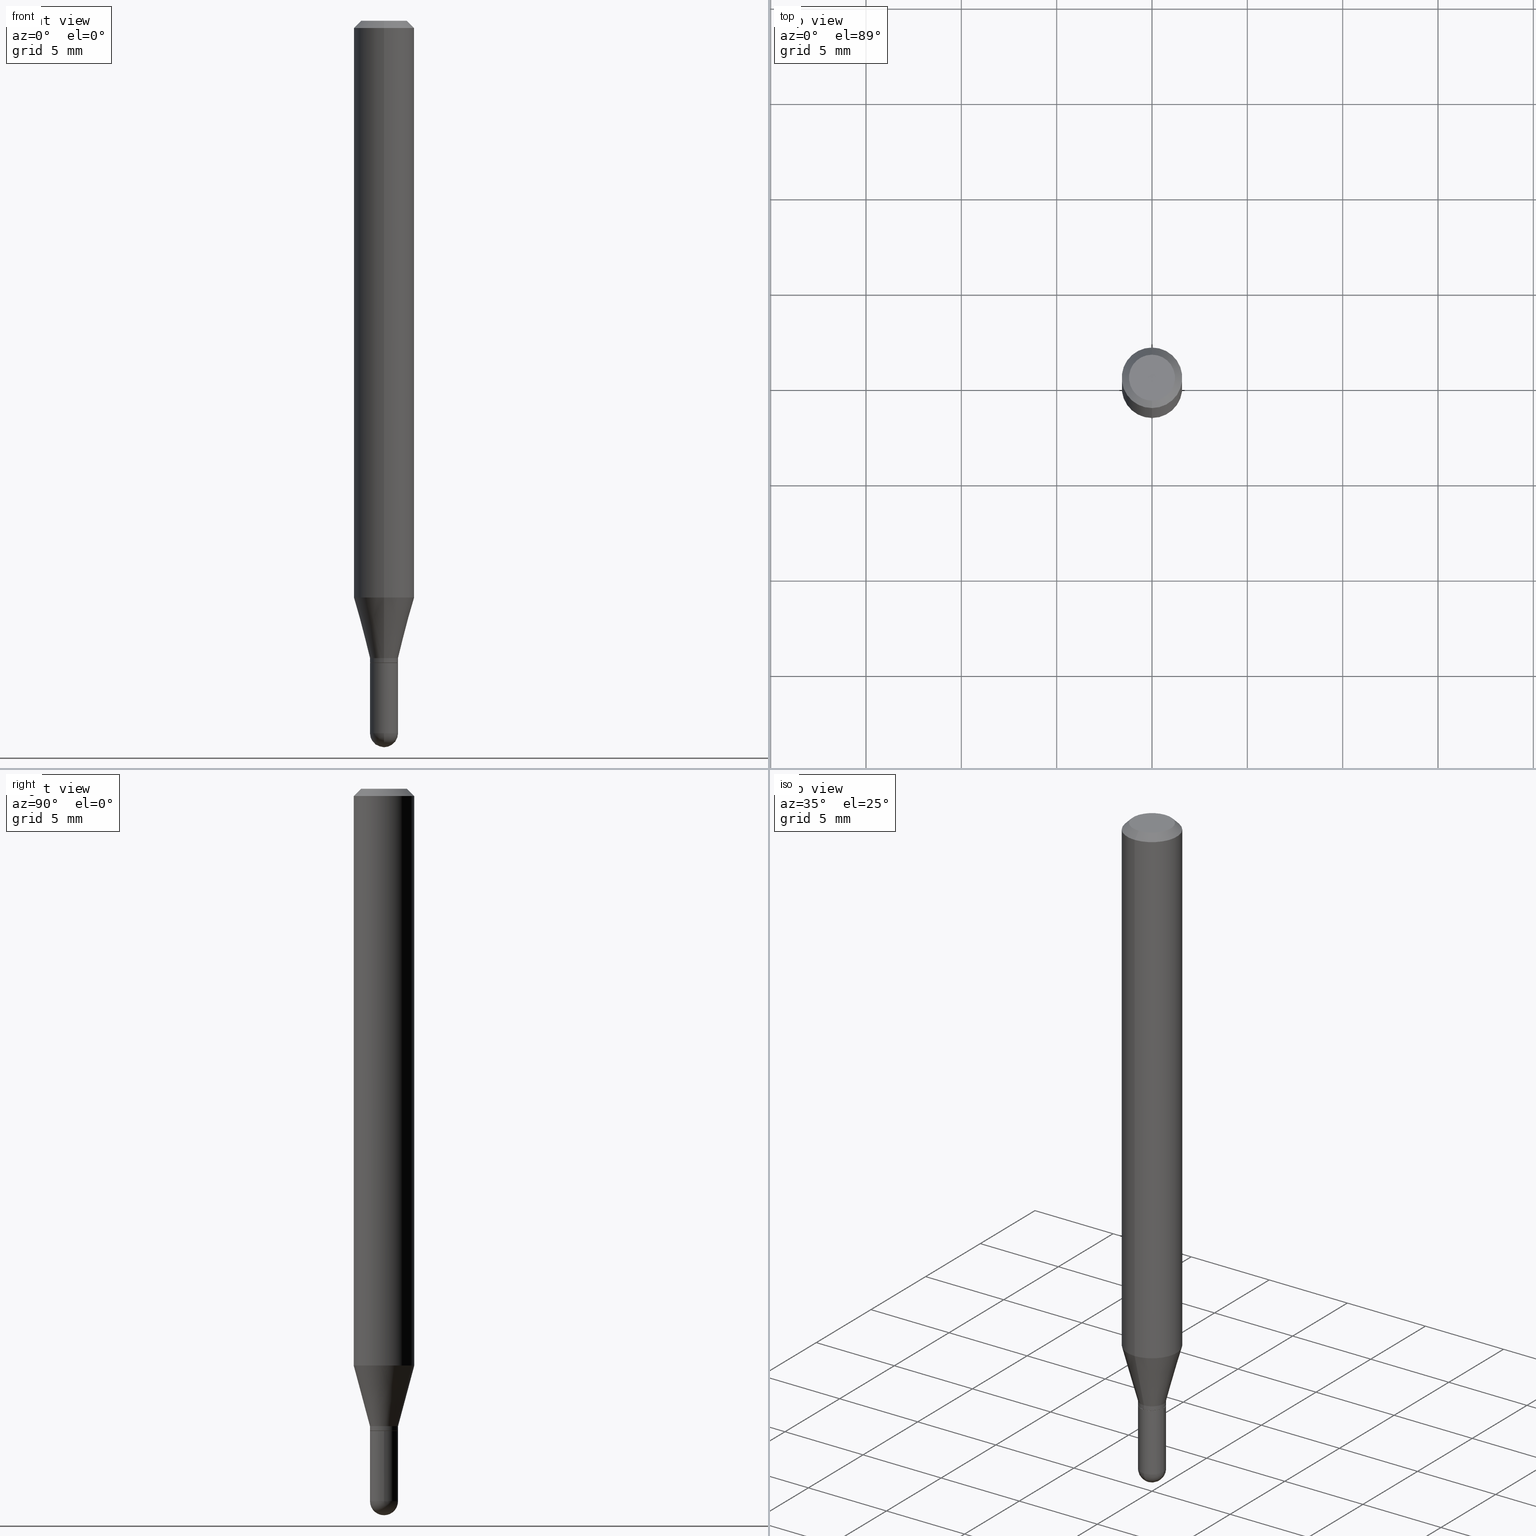
[diagram: canonical four-view strip — front | top / right | iso, engineering-drawing reading convention]
A machine part, canonical four-view strip (front | top / right | iso — engineering-drawing reading convention). The complete STEP part file that produces these views, byte-faithful:
ISO-10303-21;
HEADER;
FILE_DESCRIPTION (( 'STEP AP203' ),
    '1' );
FILE_NAME ('02589.STEP',
    '2024-03-07T20:37:03',
    ( '' ),
    ( '' ),
    'SwSTEP 2.0',
    'SolidWorks 2023',
    '' );
FILE_SCHEMA (( 'CONFIG_CONTROL_DESIGN' ));
ENDSEC;

DATA;
#1 = CONICAL_SURFACE ( 'NONE', #299, 0.02850000000000000103, 0.7853981633974739252 ) ;
#2 = ORIENTED_EDGE ( 'NONE', *, *, #492, .F. ) ;
#3 = VECTOR ( 'NONE', #476, 39.37007874015748143 ) ;
#4 = EDGE_LOOP ( 'NONE', ( #121, #478, #127, #12 ) ) ;
#5 = APPROVAL_ROLE ( '' ) ;
#6 = CARTESIAN_POINT ( 'NONE',  ( 2.025046796916609529E-16, 0.02849999999999536932, -1.326000000000000290 ) ) ;
#7 = APPROVAL ( #80, 'UNSPECIFIED' ) ;
#8 = ORIENTED_EDGE ( 'NONE', *, *, #418, .F. ) ;
#9 = CIRCLE ( 'NONE', #432, 0.02900000000000000147 ) ;
#10 = CIRCLE ( 'NONE', #151, 0.02899999999999992514 ) ;
#11 = DATE_AND_TIME ( #239, #349 ) ;
#12 = ORIENTED_EDGE ( 'NONE', *, *, #438, .F. ) ;
#13 = CARTESIAN_POINT ( 'NONE',  ( 3.597284613898336423E-29, -5.135969049438267814E-15, -1.471000000000000307 ) ) ;
#14 = EDGE_CURVE ( 'NONE', #484, #92, #475, .T. ) ;
#15 = VERTEX_POINT ( 'NONE', #218 ) ;
#16 = ORIENTED_EDGE ( 'NONE', *, *, #259, .F. ) ;
#17 = DIRECTION ( 'NONE',  ( 1.000000000000000000, -6.982962677686265922E-15, 0.000000000000000000 ) ) ;
#18 = EDGE_CURVE ( 'NONE', #136, #354, #215, .T. ) ;
#19 = FACE_OUTER_BOUND ( 'NONE', #174, .T. ) ;
#20 = DIRECTION ( 'NONE',  ( -6.982962677686265922E-15, -1.000000000000000000, 0.000000000000000000 ) ) ;
#21 = AXIS2_PLACEMENT_3D ( 'NONE', #104, #314, #502 ) ;
#22 = ADVANCED_FACE ( 'NONE', ( #175 ), #448, .F. ) ;
#23 = DIRECTION ( 'NONE',  ( -6.982962677686265922E-15, -1.000000000000000000, 0.000000000000000000 ) ) ;
#24 = CALENDAR_DATE ( 2024, 7, 3 ) ;
#25 = CC_DESIGN_PERSON_AND_ORGANIZATION_ASSIGNMENT ( #440, #161, ( #47 ) ) ;
#26 = CARTESIAN_POINT ( 'NONE',  ( -2.025059176528689732E-16, -0.02900000000000451175, -1.316000000000000281 ) ) ;
#27 = CARTESIAN_POINT ( 'NONE',  ( 3.597284613898336423E-29, -5.135969049438267814E-15, -1.471000000000000307 ) ) ;
#28 = CARTESIAN_POINT ( 'NONE',  ( 2.912491073195806680E-29, -4.158277694798067993E-15, -1.190976297946443330 ) ) ;
#29 = CARTESIAN_POINT ( 'NONE',  ( 0.000000000000000000, 0.000000000000000000, 0.000000000000000000 ) ) ;
#30 = VECTOR ( 'NONE', #233, 39.37007874015748143 ) ;
#31 = AXIS2_PLACEMENT_3D ( 'NONE', #271, #422, #69 ) ;
#32 = DIRECTION ( 'NONE',  ( 1.000000000000000000, -6.982962677686265922E-15, 0.000000000000000000 ) ) ;
#33 = DIRECTION ( 'NONE',  ( 1.000000000000000000, -6.982962677686265922E-15, 0.000000000000000000 ) ) ;
#34 = EDGE_CURVE ( 'NONE', #334, #457, #9, .T. ) ;
#35 = CARTESIAN_POINT ( 'NONE',  ( 3.242691637001491818E-29, -4.629704255306012058E-15, -1.326000000000000290 ) ) ;
#36 = CARTESIAN_POINT ( 'NONE',  ( -4.287811248607203282E-16, -0.06250000000000005551, -0.01500000000000011047 ) ) ;
#37 = DIRECTION ( 'NONE',  ( -6.982962677686265922E-15, -1.000000000000000000, 0.000000000000000000 ) ) ;
#38 = PERSON_AND_ORGANIZATION ( #459, #244 ) ;
#39 = AXIS2_PLACEMENT_3D ( 'NONE', #428, #78, #229 ) ;
#40 = CARTESIAN_POINT ( 'NONE',  ( 3.250733016102762484E-16, 0.02899999999999532813, -1.316000000000000281 ) ) ;
#41 = ORIENTED_EDGE ( 'NONE', *, *, #221, .F. ) ;
#42 = DIRECTION ( 'NONE',  ( 1.000000000000000000, 0.000000000000000000, 0.000000000000000000 ) ) ;
#43 = EDGE_LOOP ( 'NONE', ( #352, #436, #164, #301 ) ) ;
#44 = PERSON_AND_ORGANIZATION_ROLE ( 'creator' ) ;
#45 = LINE ( 'NONE', #6, #172 ) ;
#46 = VECTOR ( 'NONE', #307, 39.37007874015748143 ) ;
#47 = PRODUCT_DEFINITION_FORMATION_WITH_SPECIFIED_SOURCE ( 'ANY', '', #326, .NOT_KNOWN. ) ;
#48 = ORIENTED_EDGE ( 'NONE', *, *, #454, .F. ) ;
#49 = ORIENTED_EDGE ( 'NONE', *, *, #259, .T. ) ;
#50 = ORIENTED_EDGE ( 'NONE', *, *, #173, .T. ) ;
#51 = DIRECTION ( 'NONE',  ( -2.445465185342234268E-29, 3.491486524096267237E-15, 1.000000000000000000 ) ) ;
#52 = CIRCLE ( 'NONE', #179, 0.02900000000000000147 ) ;
#53 = CC_DESIGN_SECURITY_CLASSIFICATION ( #401, ( #47 ) ) ;
#54 = CARTESIAN_POINT ( 'NONE',  ( 0.000000000000000000, 0.000000000000000000, 0.000000000000000000 ) ) ;
#55 = ORIENTED_EDGE ( 'NONE', *, *, #34, .F. ) ;
#56 = LINE ( 'NONE', #222, #348 ) ;
#57 = ORIENTED_EDGE ( 'NONE', *, *, #160, .F. ) ;
#58 = DIRECTION ( 'NONE',  ( -6.982962677686266711E-15, -1.000000000000000000, 3.491486524096267631E-15 ) ) ;
#59 = ADVANCED_FACE ( 'NONE', ( #100 ), #371, .T. ) ;
#60 = APPROVAL_ROLE ( '' ) ;
#61 = CARTESIAN_POINT ( 'NONE',  ( 3.218232183910380981E-29, -4.594796265710689048E-15, -1.316000000000000281 ) ) ;
#62 = DIRECTION ( 'NONE',  ( 6.982962677686265922E-15, 1.000000000000000000, -3.491486524096267237E-15 ) ) ;
#63 = VECTOR ( 'NONE', #200, 39.37007874015748854 ) ;
#64 = APPROVAL_PERSON_ORGANIZATION ( #250, #7, #5 ) ;
#65 = DIRECTION ( 'NONE',  ( 7.105427357601001070E-15, 1.000000000000000000, 0.000000000000000000 ) ) ;
#66 = CARTESIAN_POINT ( 'NONE',  ( 3.668197778013431818E-31, -5.237229786144515856E-17, -0.01500000000000032904 ) ) ;
#67 = DIRECTION ( 'NONE',  ( -1.000000000000000000, 6.982962677686265922E-15, -4.876176775795935793E-29 ) ) ;
#68 = CARTESIAN_POINT ( 'NONE',  ( -2.025059176529011933E-16, -0.02899999999999992514, 1.012531091987914871E-16 ) ) ;
#69 = DIRECTION ( 'NONE',  ( 6.982962677686265922E-15, 1.000000000000000000, -3.483106191921935554E-15 ) ) ;
#70 = EDGE_CURVE ( 'NONE', #204, #279, #170, .T. ) ;
#71 = CARTESIAN_POINT ( 'NONE',  ( 0.000000000000000000, 0.000000000000000000, 0.000000000000000000 ) ) ;
#72 = AXIS2_PLACEMENT_3D ( 'NONE', #231, #303, #67 ) ;
#73 = AXIS2_PLACEMENT_3D ( 'NONE', #103, #386, #65 ) ;
#74 = DIRECTION ( 'NONE',  ( -6.982962677686265922E-15, -1.000000000000000000, 4.370956789862821150E-15 ) ) ;
#75 = CARTESIAN_POINT ( 'NONE',  ( -0.02900000000000000147, -4.676779259001710305E-15, -1.471000000000000307 ) ) ;
#76 = CC_DESIGN_PERSON_AND_ORGANIZATION_ASSIGNMENT ( #194, #427, ( #401 ) ) ;
#77 = DIRECTION ( 'NONE',  ( -2.445468806185136597E-29, 3.491481338843145583E-15, 1.000000000000000000 ) ) ;
#78 = DIRECTION ( 'NONE',  ( -2.445465185342234268E-29, 3.491486524096267237E-15, 1.000000000000000000 ) ) ;
#79 = EDGE_LOOP ( 'NONE', ( #402, #50, #125, #404 ) ) ;
#80 = APPROVAL_STATUS ( 'not_yet_approved' ) ;
#81 = PRODUCT_DEFINITION ( 'UNKNOWN', '', #47, #383 ) ;
#82 = AXIS2_PLACEMENT_3D ( 'NONE', #331, #101, #130 ) ;
#83 = CIRCLE ( 'NONE', #409, 0.06250000000000000000 ) ;
#84 = DIRECTION ( 'NONE',  ( -6.982962677686265922E-15, -1.000000000000000000, 0.000000000000000000 ) ) ;
#85 = ORIENTED_EDGE ( 'NONE', *, *, #277, .T. ) ;
#86 = DIRECTION ( 'NONE',  ( -2.445465185342233987E-29, 3.491486524096267237E-15, 1.000000000000000000 ) ) ;
#87 = VERTEX_POINT ( 'NONE', #176 ) ;
#88 = APPLICATION_PROTOCOL_DEFINITION ( 'international standard', 'config_control_design', 1994, #182 ) ;
#89 = EDGE_CURVE ( 'NONE', #124, #320, #358, .T. ) ;
#90 = ORIENTED_EDGE ( 'NONE', *, *, #203, .F. ) ;
#91 = AXIS2_PLACEMENT_3D ( 'NONE', #71, #267, #466 ) ;
#92 = VERTEX_POINT ( 'NONE', #214 ) ;
#93 = ORIENTED_EDGE ( 'NONE', *, *, #160, .T. ) ;
#94 = ORIENTED_EDGE ( 'NONE', *, *, #34, .T. ) ;
#95 = DIRECTION ( 'NONE',  ( -2.445465185342234268E-29, 3.491486524096267237E-15, 1.000000000000000000 ) ) ;
#96 = ORIENTED_EDGE ( 'NONE', *, *, #14, .T. ) ;
#97 = ORIENTED_EDGE ( 'NONE', *, *, #167, .F. ) ;
#98 = CIRCLE ( 'NONE', #289, 0.02899999999999992167 ) ;
#99 = CARTESIAN_POINT ( 'NONE',  ( 0.000000000000000000, 0.000000000000000000, 0.000000000000000000 ) ) ;
#100 = FACE_OUTER_BOUND ( 'NONE', #118, .T. ) ;
#101 = DIRECTION ( 'NONE',  ( -2.445465185342234268E-29, 3.491486524096267237E-15, 1.000000000000000000 ) ) ;
#102 = LINE ( 'NONE', #265, #142 ) ;
#103 = CARTESIAN_POINT ( 'NONE',  ( 3.594804631659716252E-29, -5.139520525155795537E-15, -1.471000000000000307 ) ) ;
#104 = CARTESIAN_POINT ( 'NONE',  ( 3.242686835763803489E-29, -4.629711130951651661E-15, -1.326000000000000290 ) ) ;
#105 = FACE_OUTER_BOUND ( 'NONE', #297, .T. ) ;
#106 = FACE_OUTER_BOUND ( 'NONE', #333, .T. ) ;
#107 = DIRECTION ( 'NONE',  ( 4.937700262164548042E-15, 0.7071067811865451302, -0.7071067811865499042 ) ) ;
#108 = VERTEX_POINT ( 'NONE', #223 ) ;
#109 = DIRECTION ( 'NONE',  ( 6.982962677686265922E-15, 1.000000000000000000, -3.483106191921935554E-15 ) ) ;
#110 = AXIS2_PLACEMENT_3D ( 'NONE', #458, #95, #256 ) ;
#111 = CARTESIAN_POINT ( 'NONE',  ( 2.042810365310609091E-16, 0.02849999999999536932, -1.326000000000000290 ) ) ;
#112 = CARTESIAN_POINT ( 'NONE',  ( -3.773273898774340269E-16, -0.04749999999999999362, -1.623010915180637317E-16 ) ) ;
#113 = EDGE_CURVE ( 'NONE', #354, #136, #196, .T. ) ;
#114 = APPROVAL_DATE_TIME ( #494, #368 ) ;
#115 = APPLICATION_CONTEXT ( 'configuration controlled 3d designs of mechanical parts and assemblies' ) ;
#116 = ADVANCED_BREP_SHAPE_REPRESENTATION ( '02589', ( #318, #145, #365 ), #446 ) ;
#117 = CARTESIAN_POINT ( 'NONE',  ( 3.218232183910380981E-29, -4.594796265710689048E-15, -1.316000000000000281 ) ) ;
#118 = EDGE_LOOP ( 'NONE', ( #48, #292, #347, #178 ) ) ;
#119 = CONICAL_SURFACE ( 'NONE', #225, 0.02850000000000000103, 0.7853981633974739252 ) ;
#120 = DIRECTION ( 'NONE',  ( -2.445465185342234268E-29, 3.491486524096267237E-15, 1.000000000000000000 ) ) ;
#121 = ORIENTED_EDGE ( 'NONE', *, *, #477, .T. ) ;
#122 = ADVANCED_FACE ( 'NONE', ( #451 ), #335, .T. ) ;
#123 = CARTESIAN_POINT ( 'NONE',  ( 2.060573933704606434E-16, 0.02899999999999532813, -1.316000000000000281 ) ) ;
#124 = VERTEX_POINT ( 'NONE', #412 ) ;
#125 = ORIENTED_EDGE ( 'NONE', *, *, #113, .T. ) ;
#126 = AXIS2_PLACEMENT_3D ( 'NONE', #338, #139, #183 ) ;
#127 = ORIENTED_EDGE ( 'NONE', *, *, #113, .F. ) ;
#128 = ORIENTED_EDGE ( 'NONE', *, *, #252, .F. ) ;
#129 = ORIENTED_EDGE ( 'NONE', *, *, #141, .T. ) ;
#130 = DIRECTION ( 'NONE',  ( -6.982962677686265922E-15, -1.000000000000000000, 3.483106191921935554E-15 ) ) ;
#131 = EDGE_LOOP ( 'NONE', ( #300, #85, #439, #482 ) ) ;
#132 = AXIS2_PLACEMENT_3D ( 'NONE', #257, #51, #58 ) ;
#133 = VECTOR ( 'NONE', #208, 39.37007874015748143 ) ;
#134 = CARTESIAN_POINT ( 'NONE',  ( 3.242686835763803489E-29, -4.629711130951651661E-15, -1.326000000000000290 ) ) ;
#135 = ADVANCED_FACE ( 'NONE', ( #488 ), #119, .T. ) ;
#136 = VERTEX_POINT ( 'NONE', #181 ) ;
#137 = DIRECTION ( 'NONE',  ( -2.445468806185136597E-29, 3.491481338843145583E-15, 1.000000000000000000 ) ) ;
#138 = DIRECTION ( 'NONE',  ( -2.445468806185136597E-29, 3.491481338843145583E-15, 1.000000000000000000 ) ) ;
#139 = DIRECTION ( 'NONE',  ( 1.000000000000000000, -6.982962677686265922E-15, 4.883557194083112340E-29 ) ) ;
#140 = DIRECTION ( 'NONE',  ( 2.445465185342234268E-29, -3.491486524096267237E-15, -1.000000000000000000 ) ) ;
#141 = EDGE_CURVE ( 'NONE', #251, #449, #52, .T. ) ;
#142 = VECTOR ( 'NONE', #417, 39.37007874015748143 ) ;
#143 = FACE_OUTER_BOUND ( 'NONE', #360, .T. ) ;
#144 = EDGE_CURVE ( 'NONE', #484, #370, #497, .T. ) ;
#145 = MANIFOLD_SOLID_BREP ( 'Body-Move/Copy2[2]', #443 ) ;
#146 = DIRECTION ( 'NONE',  ( 1.000000000000000000, -6.982962677686266711E-15, 4.876176775795935793E-29 ) ) ;
#147 = DIRECTION ( 'NONE',  ( 1.000000000000000000, -6.982962677686265922E-15, 0.000000000000000000 ) ) ;
#148 = FACE_OUTER_BOUND ( 'NONE', #366, .T. ) ;
#149 = ADVANCED_FACE ( 'NONE', ( #188 ), #191, .T. ) ;
#150 = CIRCLE ( 'NONE', #364, 0.06250000000000000000 ) ;
#151 = AXIS2_PLACEMENT_3D ( 'NONE', #199, #120, #470 ) ;
#152 = CC_DESIGN_PERSON_AND_ORGANIZATION_ASSIGNMENT ( #388, #44, ( #81 ) ) ;
#153 =( NAMED_UNIT ( * ) SI_UNIT ( $, .STERADIAN. ) SOLID_ANGLE_UNIT ( ) );
#154 = ORIENTED_EDGE ( 'NONE', *, *, #277, .F. ) ;
#155 = DIRECTION ( 'NONE',  ( -2.445465185342234268E-29, 3.491486524096267237E-15, 1.000000000000000000 ) ) ;
#156 = ORIENTED_EDGE ( 'NONE', *, *, #477, .F. ) ;
#157 = APPROVAL_DATE_TIME ( #507, #7 ) ;
#158 = ORIENTED_EDGE ( 'NONE', *, *, #203, .T. ) ;
#159 = FACE_OUTER_BOUND ( 'NONE', #296, .T. ) ;
#160 = EDGE_CURVE ( 'NONE', #457, #251, #376, .T. ) ;
#161 = PERSON_AND_ORGANIZATION_ROLE ( 'design_supplier' ) ;
#162 = AXIS2_PLACEMENT_3D ( 'NONE', #304, #424, #32 ) ;
#163 =( LENGTH_UNIT ( ) NAMED_UNIT ( * ) SI_UNIT ( $, .METRE. ) );
#164 = ORIENTED_EDGE ( 'NONE', *, *, #295, .F. ) ;
#165 = CARTESIAN_POINT ( 'NONE',  ( 4.440892098500625669E-16, 0.06250000000000000000, -2.182179077560167023E-16 ) ) ;
#166 = EDGE_LOOP ( 'NONE', ( #2, #293, #481, #202 ) ) ;
#167 = EDGE_CURVE ( 'NONE', #251, #108, #272, .T. ) ;
#168 = ORIENTED_EDGE ( 'NONE', *, *, #375, .F. ) ;
#169 = EDGE_LOOP ( 'NONE', ( #93, #433, #255, #493, #94 ) ) ;
#170 = CIRCLE ( 'NONE', #132, 0.04749999999999999362 ) ;
#171 = ORIENTED_EDGE ( 'NONE', *, *, #252, .T. ) ;
#172 = VECTOR ( 'NONE', #240, 39.37007874015748143 ) ;
#173 = EDGE_CURVE ( 'NONE', #204, #354, #343, .T. ) ;
#174 = EDGE_LOOP ( 'NONE', ( #399, #369, #49, #154 ) ) ;
#175 = FACE_OUTER_BOUND ( 'NONE', #281, .T. ) ;
#176 = CARTESIAN_POINT ( 'NONE',  ( 0.02900000000000000147, -4.832210172958914360E-15, -1.326000000000000290 ) ) ;
#177 = DIRECTION ( 'NONE',  ( -2.445465185342234268E-29, 3.491486524096267237E-15, 1.000000000000000000 ) ) ;
#178 = ORIENTED_EDGE ( 'NONE', *, *, #144, .F. ) ;
#179 = AXIS2_PLACEMENT_3D ( 'NONE', #337, #137, #33 ) ;
#180 = CIRCLE ( 'NONE', #73, 0.02900000000000007780 ) ;
#181 = CARTESIAN_POINT ( 'NONE',  ( 4.440892098500919026E-16, 0.06249999999999995837, -0.01500000000000054588 ) ) ;
#182 = APPLICATION_CONTEXT ( 'configuration controlled 3d designs of mechanical parts and assemblies' ) ;
#183 = DIRECTION ( 'NONE',  ( -6.982962677686265922E-15, -1.000000000000000000, 0.000000000000000000 ) ) ;
#184 = CARTESIAN_POINT ( 'NONE',  ( 0.000000000000000000, 0.000000000000000000, 0.000000000000000000 ) ) ;
#185 = DIRECTION ( 'NONE',  ( -2.445465185342234268E-29, 3.491486524096267237E-15, 1.000000000000000000 ) ) ;
#186 = DIRECTION ( 'NONE',  ( -2.445465185342234268E-29, 3.491486524096267237E-15, 1.000000000000000000 ) ) ;
#187 = AXIS2_PLACEMENT_3D ( 'NONE', #66, #140, #109 ) ;
#188 = FACE_OUTER_BOUND ( 'NONE', #131, .T. ) ;
#189 = LOCAL_TIME ( 15, 37, 3.000000000000000000, #511 ) ;
#190 = CARTESIAN_POINT ( 'NONE',  ( -4.364351673553912750E-16, -0.06250000000000005551, -0.01500000000000011047 ) ) ;
#191 = CYLINDRICAL_SURFACE ( 'NONE', #467, 0.06250000000000000000 ) ;
#192 = CARTESIAN_POINT ( 'NONE',  ( 3.242686835763803489E-29, -4.629711130951651661E-15, -1.326000000000000290 ) ) ;
#193 = CARTESIAN_POINT ( 'NONE',  ( 3.242691637001491818E-29, -4.629704255306012058E-15, -1.326000000000000290 ) ) ;
#194 = PERSON_AND_ORGANIZATION ( #459, #244 ) ;
#195 = SPHERICAL_SURFACE ( 'NONE', #408, 0.02900000000000007780 ) ;
#196 = CIRCLE ( 'NONE', #82, 0.06250000000000000000 ) ;
#197 = LOCAL_TIME ( 15, 37, 3.000000000000000000, #276 ) ;
#198 = SECURITY_CLASSIFICATION_LEVEL ( 'unclassified' ) ;
#199 = CARTESIAN_POINT ( 'NONE',  ( 3.241464103171132252E-29, -4.627965387689604083E-15, -1.325500000000000345 ) ) ;
#200 = DIRECTION ( 'NONE',  ( -1.807323732225332111E-15, -0.2588190451025184635, 0.9659258262890689783 ) ) ;
#201 = ORIENTED_EDGE ( 'NONE', *, *, #503, .T. ) ;
#202 = ORIENTED_EDGE ( 'NONE', *, *, #89, .F. ) ;
#203 = EDGE_CURVE ( 'NONE', #260, #405, #305, .T. ) ;
#204 = VERTEX_POINT ( 'NONE', #112 ) ;
#205 = CIRCLE ( 'NONE', #489, 0.02850000000000000103 ) ;
#206 = COORDINATED_UNIVERSAL_TIME_OFFSET ( 5, 0, .BEHIND. ) ;
#207 = AXIS2_PLACEMENT_3D ( 'NONE', #184, #138, #146 ) ;
#208 = DIRECTION ( 'NONE',  ( -2.445468806185136877E-29, 3.491481338843145188E-15, 1.000000000000000000 ) ) ;
#209 = ADVANCED_FACE ( 'NONE', ( #143 ), #313, .T. ) ;
#210 = EDGE_LOOP ( 'NONE', ( #406, #411, #372, #487 ) ) ;
#211 = LINE ( 'NONE', #394, #63 ) ;
#212 = EDGE_LOOP ( 'NONE', ( #363, #171, #264, #57 ) ) ;
#213 = ORIENTED_EDGE ( 'NONE', *, *, #485, .F. ) ;
#214 = CARTESIAN_POINT ( 'NONE',  ( 4.440892098500914096E-16, 0.06249999999999581585, -1.190976297946443552 ) ) ;
#215 = CIRCLE ( 'NONE', #444, 0.06250000000000000000 ) ;
#216 = AXIS2_PLACEMENT_3D ( 'NONE', #54, #220, #226 ) ;
#217 = CC_DESIGN_APPROVAL ( #368, ( #81 ) ) ;
#218 = CARTESIAN_POINT ( 'NONE',  ( 3.664483235919775199E-29, -5.242549221841010550E-15, -1.500000000000000444 ) ) ;
#219 = ORIENTED_EDGE ( 'NONE', *, *, #492, .T. ) ;
#220 = DIRECTION ( 'NONE',  ( -2.445465185342234268E-29, 3.491486524096267237E-15, 1.000000000000000000 ) ) ;
#221 = EDGE_CURVE ( 'NONE', #108, #87, #321, .T. ) ;
#222 = CARTESIAN_POINT ( 'NONE',  ( -1.990144363140261633E-16, -0.02850000000000463274, -1.326000000000000290 ) ) ;
#223 = CARTESIAN_POINT ( 'NONE',  ( -0.02900000000000000147, -4.676779259001710305E-15, -1.326000000000000290 ) ) ;
#224 = DIRECTION ( 'NONE',  ( -2.445465185342234268E-29, 3.491486524096267237E-15, 1.000000000000000000 ) ) ;
#225 = AXIS2_PLACEMENT_3D ( 'NONE', #134, #373, #20 ) ;
#226 = DIRECTION ( 'NONE',  ( -6.982962677686265922E-15, -1.000000000000000000, 3.491486524096267237E-15 ) ) ;
#227 = ADVANCED_FACE ( 'NONE', ( #106 ), #195, .T. ) ;
#228 = LINE ( 'NONE', #461, #498 ) ;
#229 = DIRECTION ( 'NONE',  ( -6.982962677686265922E-15, -1.000000000000000000, 0.000000000000000000 ) ) ;
#230 = CARTESIAN_POINT ( 'NONE',  ( 4.364351673553919652E-16, 0.06249999999999995143, -0.01500000000000054588 ) ) ;
#231 = CARTESIAN_POINT ( 'NONE',  ( 2.025059176529341282E-16, 0.02899999999999536976, -1.326000000000000290 ) ) ;
#232 = CONICAL_SURFACE ( 'NONE', #328, 0.02899999999999992167, 0.2617993877991505736 ) ;
#233 = DIRECTION ( 'NONE',  ( -4.851104656540964275E-15, -0.7071067811865500152, -0.7071067811865450192 ) ) ;
#234 = AXIS2_PLACEMENT_3D ( 'NONE', #357, #397, #430 ) ;
#235 = PERSON_AND_ORGANIZATION ( #459, #244 ) ;
#236 = DIRECTION ( 'NONE',  ( -2.445468806185136597E-29, 3.491481338843145583E-15, 1.000000000000000000 ) ) ;
#237 = CARTESIAN_POINT ( 'NONE',  ( 3.594804631659716252E-29, -5.139520525155795537E-15, -1.471000000000000307 ) ) ;
#238 = ADVANCED_FACE ( 'NONE', ( #339 ), #420, .T. ) ;
#239 = CALENDAR_DATE ( 2024, 7, 3 ) ;
#240 = DIRECTION ( 'NONE',  ( 5.024295867788190974E-15, 0.7071067811865681119, 0.7071067811865270336 ) ) ;
#241 = DATE_TIME_ROLE ( 'classification_date' ) ;
#242 =( NAMED_UNIT ( * ) PLANE_ANGLE_UNIT ( ) SI_UNIT ( $, .RADIAN. ) );
#243 = AXIS2_PLACEMENT_3D ( 'NONE', #193, #464, #147 ) ;
#244 = ORGANIZATION ( 'UNSPECIFIED', 'UNSPECIFIED', '' ) ;
#245 = DIRECTION ( 'NONE',  ( 0.000000000000000000, 0.000000000000000000, 1.000000000000000000 ) ) ;
#246 = ADVANCED_FACE ( 'NONE', ( #496 ), #505, .T. ) ;
#247 = PERSON_AND_ORGANIZATION_ROLE ( 'creator' ) ;
#248 = EDGE_CURVE ( 'NONE', #320, #370, #275, .T. ) ;
#249 = DIRECTION ( 'NONE',  ( -6.982962677686265922E-15, -1.000000000000000000, 3.491486524096267237E-15 ) ) ;
#250 = PERSON_AND_ORGANIZATION ( #459, #244 ) ;
#251 = VERTEX_POINT ( 'NONE', #75 ) ;
#252 = EDGE_CURVE ( 'NONE', #15, #449, #473, .T. ) ;
#253 = AXIS2_PLACEMENT_3D ( 'NONE', #309, #185, #37 ) ;
#254 = PRODUCT_DEFINITION_SHAPE ( 'NONE', 'NONE',  #81 ) ;
#255 = ORIENTED_EDGE ( 'NONE', *, *, #359, .F. ) ;
#256 = DIRECTION ( 'NONE',  ( -6.982962677686265922E-15, -1.000000000000000000, 0.000000000000000000 ) ) ;
#257 = CARTESIAN_POINT ( 'NONE',  ( 8.024713339894958191E-45, -1.145719785908861744E-30, -3.281467014126364155E-16 ) ) ;
#258 = AXIS2_PLACEMENT_3D ( 'NONE', #237, #387, #345 ) ;
#259 = EDGE_CURVE ( 'NONE', #370, #483, #211, .T. ) ;
#260 = VERTEX_POINT ( 'NONE', #361 ) ;
#261 = DIRECTION ( 'NONE',  ( -6.982962677686265922E-15, -1.000000000000000000, 3.483106191921935554E-15 ) ) ;
#262 = APPROVAL ( #350, 'UNSPECIFIED' ) ;
#263 = DIRECTION ( 'NONE',  ( -6.982962677686265922E-15, -1.000000000000000000, 3.491486524096267237E-15 ) ) ;
#264 = ORIENTED_EDGE ( 'NONE', *, *, #141, .F. ) ;
#265 = CARTESIAN_POINT ( 'NONE',  ( -4.364351673553916201E-16, -0.06250000000000000000, 2.182179077560167023E-16 ) ) ;
#266 = CC_DESIGN_APPROVAL ( #262, ( #401 ) ) ;
#267 = DIRECTION ( 'NONE',  ( -2.445465185342234268E-29, 3.491486524096267237E-15, 1.000000000000000000 ) ) ;
#268 = DIRECTION ( 'NONE',  ( -2.445465185342234268E-29, 3.491486524096267237E-15, 1.000000000000000000 ) ) ;
#269 = UNCERTAINTY_MEASURE_WITH_UNIT (LENGTH_MEASURE( 1.000000000000000082E-05 ), #389, 'distance_accuracy_value', 'NONE');
#270 = DIRECTION ( 'NONE',  ( -6.982962677686265922E-15, -1.000000000000000000, 0.000000000000000000 ) ) ;
#271 = CARTESIAN_POINT ( 'NONE',  ( 3.668197778013431818E-31, -5.237229786144515856E-17, -0.01500000000000032904 ) ) ;
#272 = LINE ( 'NONE', #426, #423 ) ;
#273 = SPHERICAL_SURFACE ( 'NONE', #126, 0.02900000000000007780 ) ;
#274 = ADVANCED_FACE ( 'NONE', ( #159 ), #323, .F. ) ;
#275 = LINE ( 'NONE', #68, #46 ) ;
#276 = COORDINATED_UNIVERSAL_TIME_OFFSET ( 5, 0, .BEHIND. ) ;
#277 = EDGE_CURVE ( 'NONE', #92, #483, #150, .T. ) ;
#278 = CALENDAR_DATE ( 2024, 7, 3 ) ;
#279 = VERTEX_POINT ( 'NONE', #471 ) ;
#280 = VECTOR ( 'NONE', #415, 39.37007874015748143 ) ;
#281 = EDGE_LOOP ( 'NONE', ( #327, #390 ) ) ;
#282 = LOCAL_TIME ( 15, 37, 3.000000000000000000, #379 ) ;
#283 = CIRCLE ( 'NONE', #162, 0.02900000000000000147 ) ;
#284 = CARTESIAN_POINT ( 'NONE',  ( 0.000000000000000000, 0.000000000000000000, 0.000000000000000000 ) ) ;
#285 = ORIENTED_EDGE ( 'NONE', *, *, #330, .F. ) ;
#286 = DATE_AND_TIME ( #278, #197 ) ;
#287 = APPLICATION_PROTOCOL_DEFINITION ( 'international standard', 'config_control_design', 1994, #115 ) ;
#288 = LINE ( 'NONE', #317, #133 ) ;
#289 = AXIS2_PLACEMENT_3D ( 'NONE', #117, #435, #84 ) ;
#290 = SHAPE_DEFINITION_REPRESENTATION ( #254, #116 ) ;
#291 = CONICAL_SURFACE ( 'NONE', #31, 0.06250000000000000000, 0.7853981633974483900 ) ;
#292 = ORIENTED_EDGE ( 'NONE', *, *, #89, .T. ) ;
#293 = ORIENTED_EDGE ( 'NONE', *, *, #375, .T. ) ;
#294 = CARTESIAN_POINT ( 'NONE',  ( 3.316907271900976096E-16, 0.04749999999999999362, -3.299189606008908670E-16 ) ) ;
#295 = EDGE_CURVE ( 'NONE', #370, #484, #98, .T. ) ;
#296 = EDGE_LOOP ( 'NONE', ( #90, #168 ) ) ;
#297 = EDGE_LOOP ( 'NONE', ( #508, #447 ) ) ;
#298 = DIRECTION ( 'NONE',  ( -2.445468806185136597E-29, 3.491481338843145583E-15, 1.000000000000000000 ) ) ;
#299 = AXIS2_PLACEMENT_3D ( 'NONE', #341, #380, #501 ) ;
#300 = ORIENTED_EDGE ( 'NONE', *, *, #510, .F. ) ;
#301 = ORIENTED_EDGE ( 'NONE', *, *, #248, .F. ) ;
#302 = CARTESIAN_POINT ( 'NONE',  ( 3.668197778013431818E-31, -5.237229786144515856E-17, -0.01500000000000032904 ) ) ;
#303 = DIRECTION ( 'NONE',  ( 2.438088387897960049E-29, -3.491481338843145188E-15, -1.000000000000000000 ) ) ;
#304 = CARTESIAN_POINT ( 'NONE',  ( 3.597284613898336423E-29, -5.135969049438267814E-15, -1.471000000000000307 ) ) ;
#305 = CIRCLE ( 'NONE', #21, 0.02850000000000000103 ) ;
#306 = APPROVAL_PERSON_ORGANIZATION ( #235, #368, #60 ) ;
#307 = DIRECTION ( 'NONE',  ( -2.445465185342234268E-29, 3.491486524096267237E-15, 1.000000000000000000 ) ) ;
#308 = DIRECTION ( 'NONE',  ( -2.445465185342234268E-29, 3.491486524096267237E-15, 1.000000000000000000 ) ) ;
#309 = CARTESIAN_POINT ( 'NONE',  ( 3.218232183910380981E-29, -4.594796265710689048E-15, -1.316000000000000281 ) ) ;
#310 = DIRECTION ( 'NONE',  ( -6.982962677686265922E-15, -1.000000000000000000, 0.000000000000000000 ) ) ;
#311 = CARTESIAN_POINT ( 'NONE',  ( 3.594804631659716252E-29, -5.139520525155795537E-15, -1.471000000000000307 ) ) ;
#312 = CYLINDRICAL_SURFACE ( 'NONE', #377, 0.02900000000000000147 ) ;
#313 = CONICAL_SURFACE ( 'NONE', #253, 0.02899999999999992167, 0.2617993877991505736 ) ;
#314 = DIRECTION ( 'NONE',  ( -2.445465185342234268E-29, 3.491486524096267237E-15, 1.000000000000000000 ) ) ;
#315 = VECTOR ( 'NONE', #107, 39.37007874015748143 ) ;
#316 = CALENDAR_DATE ( 2024, 7, 3 ) ;
#317 = CARTESIAN_POINT ( 'NONE',  ( 0.02900000000000000147, -2.025059176529017356E-16, 1.414091264980821422E-30 ) ) ;
#318 = MANIFOLD_SOLID_BREP ( 'Body-Move/Copy2[1]', #374 ) ;
#319 = DIRECTION ( 'NONE',  ( -6.982962677686265922E-15, -1.000000000000000000, 4.370956789862821150E-15 ) ) ;
#320 = VERTEX_POINT ( 'NONE', #455 ) ;
#321 = CIRCLE ( 'NONE', #243, 0.02900000000000000147 ) ;
#322 = COORDINATED_UNIVERSAL_TIME_OFFSET ( 5, 0, .BEHIND. ) ;
#323 = PLANE ( 'NONE',  #452 ) ;
#324 = APPROVAL_DATE_TIME ( #11, #262 ) ;
#325 = LINE ( 'NONE', #165, #3 ) ;
#326 = PRODUCT ( '02589', '02589', '', ( #431 ) ) ;
#327 = ORIENTED_EDGE ( 'NONE', *, *, #490, .T. ) ;
#328 = AXIS2_PLACEMENT_3D ( 'NONE', #61, #224, #310 ) ;
#329 = DIRECTION ( 'NONE',  ( 2.445465185342233987E-29, -3.491486524096267237E-15, -1.000000000000000000 ) ) ;
#330 = EDGE_CURVE ( 'NONE', #260, #320, #56, .T. ) ;
#331 = CARTESIAN_POINT ( 'NONE',  ( 3.668197778013431818E-31, -5.237229786144515856E-17, -0.01500000000000032904 ) ) ;
#332 = CC_DESIGN_DATE_AND_TIME_ASSIGNMENT ( #474, #241, ( #401 ) ) ;
#333 = EDGE_LOOP ( 'NONE', ( #128, #356, #55, #8 ) ) ;
#334 = VERTEX_POINT ( 'NONE', #367 ) ;
#335 = CYLINDRICAL_SURFACE ( 'NONE', #479, 0.02899999999999992514 ) ;
#336 = ADVANCED_FACE ( 'NONE', ( #19 ), #232, .T. ) ;
#337 = CARTESIAN_POINT ( 'NONE',  ( 3.597284613898336423E-29, -5.135969049438267814E-15, -1.471000000000000307 ) ) ;
#338 = CARTESIAN_POINT ( 'NONE',  ( 3.594804631659716252E-29, -5.139520525155795537E-15, -1.471000000000000307 ) ) ;
#339 = FACE_OUTER_BOUND ( 'NONE', #4, .T. ) ;
#340 = AXIS2_PLACEMENT_3D ( 'NONE', #27, #506, #462 ) ;
#341 = CARTESIAN_POINT ( 'NONE',  ( 3.242686835763803489E-29, -4.629711130951651661E-15, -1.326000000000000290 ) ) ;
#342 = CARTESIAN_POINT ( 'NONE',  ( -2.025059176528660396E-16, -0.02900000000000517442, -1.471000000000000307 ) ) ;
#343 = LINE ( 'NONE', #36, #30 ) ;
#344 = CYLINDRICAL_SURFACE ( 'NONE', #207, 0.02900000000000000147 ) ;
#345 = DIRECTION ( 'NONE',  ( -6.982962677686265922E-15, -1.000000000000000000, 0.000000000000000000 ) ) ;
#346 = ADVANCED_FACE ( 'NONE', ( #465 ), #1, .T. ) ;
#347 = ORIENTED_EDGE ( 'NONE', *, *, #248, .T. ) ;
#348 = VECTOR ( 'NONE', #407, 39.37007874015748143 ) ;
#349 = LOCAL_TIME ( 15, 37, 3.000000000000000000, #206 ) ;
#350 = APPROVAL_STATUS ( 'not_yet_approved' ) ;
#351 = PRODUCT_RELATED_PRODUCT_CATEGORY ( 'detail', '', ( #326 ) ) ;
#352 = ORIENTED_EDGE ( 'NONE', *, *, #485, .T. ) ;
#353 = CARTESIAN_POINT ( 'NONE',  ( 3.242686835763803489E-29, -4.629711130951651661E-15, -1.326000000000000290 ) ) ;
#354 = VERTEX_POINT ( 'NONE', #190 ) ;
#355 = EDGE_LOOP ( 'NONE', ( #158, #219, #213, #285 ) ) ;
#356 = ORIENTED_EDGE ( 'NONE', *, *, #445, .T. ) ;
#357 = CARTESIAN_POINT ( 'NONE',  ( 8.024713339894958191E-45, -1.145719785908861744E-30, -3.281467014126364155E-16 ) ) ;
#358 = CIRCLE ( 'NONE', #110, 0.02899999999999992514 ) ;
#359 = EDGE_CURVE ( 'NONE', #87, #108, #416, .T. ) ;
#360 = EDGE_LOOP ( 'NONE', ( #486, #96, #156, #16 ) ) ;
#361 = CARTESIAN_POINT ( 'NONE',  ( -1.990144363140261633E-16, -0.02850000000000463274, -1.326000000000000290 ) ) ;
#362 = ADVANCED_FACE ( 'NONE', ( #105 ), #491, .F. ) ;
#363 = ORIENTED_EDGE ( 'NONE', *, *, #445, .F. ) ;
#364 = AXIS2_PLACEMENT_3D ( 'NONE', #509, #155, #319 ) ;
#365 = AXIS2_PLACEMENT_3D ( 'NONE', #284, #245, #42 ) ;
#366 = EDGE_LOOP ( 'NONE', ( #97, #129, #450, #201, #41 ) ) ;
#367 = CARTESIAN_POINT ( 'NONE',  ( 0.02900000000000000147, -5.085342570025041844E-15, -1.471000000000000307 ) ) ;
#368 = APPROVAL ( #414, 'UNSPECIFIED' ) ;
#369 = ORIENTED_EDGE ( 'NONE', *, *, #144, .T. ) ;
#370 = VERTEX_POINT ( 'NONE', #26 ) ;
#371 = CYLINDRICAL_SURFACE ( 'NONE', #216, 0.02899999999999992514 ) ;
#372 = ORIENTED_EDGE ( 'NONE', *, *, #398, .T. ) ;
#373 = DIRECTION ( 'NONE',  ( -2.445465185342234268E-29, 3.491486524096267237E-15, 1.000000000000000000 ) ) ;
#374 = CLOSED_SHELL ( 'NONE', ( #384, #227, #362, #413, #472 ) ) ;
#375 = EDGE_CURVE ( 'NONE', #405, #260, #205, .T. ) ;
#376 = CIRCLE ( 'NONE', #340, 0.02900000000000000147 ) ;
#377 = AXIS2_PLACEMENT_3D ( 'NONE', #382, #236, #463 ) ;
#378 = FACE_OUTER_BOUND ( 'NONE', #169, .T. ) ;
#379 = COORDINATED_UNIVERSAL_TIME_OFFSET ( 5, 0, .BEHIND. ) ;
#380 = DIRECTION ( 'NONE',  ( -2.445465185342234268E-29, 3.491486524096267237E-15, 1.000000000000000000 ) ) ;
#381 = DIRECTION ( 'NONE',  ( -2.445465185342234268E-29, 3.491486524096267237E-15, 1.000000000000000000 ) ) ;
#382 = CARTESIAN_POINT ( 'NONE',  ( 0.000000000000000000, 0.000000000000000000, 0.000000000000000000 ) ) ;
#383 = DESIGN_CONTEXT ( 'detailed design', #182, 'design' ) ;
#384 = ADVANCED_FACE ( 'NONE', ( #378 ), #344, .T. ) ;
#385 = DIRECTION ( 'NONE',  ( 1.000000000000000000, -6.982962677686265922E-15, 0.000000000000000000 ) ) ;
#386 = DIRECTION ( 'NONE',  ( 1.000000000000000000, -7.105427357601001070E-15, 4.926315508542082329E-29 ) ) ;
#387 = DIRECTION ( 'NONE',  ( -1.000000000000000000, 6.982962677686265922E-15, -4.883557194083112340E-29 ) ) ;
#388 = PERSON_AND_ORGANIZATION ( #459, #244 ) ;
#389 =( CONVERSION_BASED_UNIT ( 'INCH', #469 ) LENGTH_UNIT ( ) NAMED_UNIT ( #410 ) );
#390 = ORIENTED_EDGE ( 'NONE', *, *, #70, .T. ) ;
#391 = DIRECTION ( 'NONE',  ( -6.982962677686265922E-15, -1.000000000000000000, 3.491486524096267237E-15 ) ) ;
#392 = PERSON_AND_ORGANIZATION ( #459, #244 ) ;
#393 = AXIS2_PLACEMENT_3D ( 'NONE', #294, #329, #62 ) ;
#394 = CARTESIAN_POINT ( 'NONE',  ( -2.025059176528689732E-16, -0.02900000000000451175, -1.316000000000000281 ) ) ;
#395 = CC_DESIGN_APPROVAL ( #7, ( #47 ) ) ;
#396 = CALENDAR_DATE ( 2024, 7, 3 ) ;
#397 = DIRECTION ( 'NONE',  ( -2.445465185342234268E-29, 3.491486524096267237E-15, 1.000000000000000000 ) ) ;
#398 = EDGE_CURVE ( 'NONE', #279, #136, #499, .T. ) ;
#399 = ORIENTED_EDGE ( 'NONE', *, *, #14, .F. ) ;
#400 = APPROVAL_ROLE ( '' ) ;
#401 = SECURITY_CLASSIFICATION ( '', '', #198 ) ;
#402 = ORIENTED_EDGE ( 'NONE', *, *, #70, .F. ) ;
#403 = ADVANCED_FACE ( 'NONE', ( #504 ), #291, .T. ) ;
#404 = ORIENTED_EDGE ( 'NONE', *, *, #398, .F. ) ;
#405 = VERTEX_POINT ( 'NONE', #111 ) ;
#406 = ORIENTED_EDGE ( 'NONE', *, *, #173, .F. ) ;
#407 = DIRECTION ( 'NONE',  ( -4.937700262164674260E-15, -0.7071067811865632269, 0.7071067811865319186 ) ) ;
#408 = AXIS2_PLACEMENT_3D ( 'NONE', #311, #460, #270 ) ;
#409 = AXIS2_PLACEMENT_3D ( 'NONE', #28, #308, #74 ) ;
#410 = DIMENSIONAL_EXPONENTS ( 1.000000000000000000, 0.000000000000000000, 0.000000000000000000, 0.000000000000000000, 0.000000000000000000, 0.000000000000000000, 0.000000000000000000 ) ;
#411 = ORIENTED_EDGE ( 'NONE', *, *, #490, .F. ) ;
#412 = CARTESIAN_POINT ( 'NONE',  ( 2.060573933704601751E-16, 0.02899999999999519629, -1.325500000000000345 ) ) ;
#413 = ADVANCED_FACE ( 'NONE', ( #495 ), #273, .T. ) ;
#414 = APPROVAL_STATUS ( 'not_yet_approved' ) ;
#415 = DIRECTION ( 'NONE',  ( 1.839019923739602287E-15, 0.2588190451025252359, 0.9659258262890670910 ) ) ;
#416 = CIRCLE ( 'NONE', #434, 0.02900000000000000147 ) ;
#417 = DIRECTION ( 'NONE',  ( -2.445465185342234268E-29, 3.491486524096267237E-15, 1.000000000000000000 ) ) ;
#418 = EDGE_CURVE ( 'NONE', #449, #334, #283, .T. ) ;
#419 = CARTESIAN_POINT ( 'NONE',  ( 2.060573933704652780E-16, 0.02899999999999490485, -1.471000000000000307 ) ) ;
#420 = CYLINDRICAL_SURFACE ( 'NONE', #91, 0.06250000000000000000 ) ;
#421 = CC_DESIGN_DATE_AND_TIME_ASSIGNMENT ( #286, #429, ( #81 ) ) ;
#422 = DIRECTION ( 'NONE',  ( 2.445465185342234268E-29, -3.491486524096267237E-15, -1.000000000000000000 ) ) ;
#423 = VECTOR ( 'NONE', #500, 39.37007874015748143 ) ;
#424 = DIRECTION ( 'NONE',  ( -2.445468806185136597E-29, 3.491481338843145583E-15, 1.000000000000000000 ) ) ;
#425 = LOCAL_TIME ( 15, 37, 3.000000000000000000, #322 ) ;
#426 = CARTESIAN_POINT ( 'NONE',  ( -0.02900000000000000147, 2.060573933704290644E-16, -1.426491176173922626E-30 ) ) ;
#427 = PERSON_AND_ORGANIZATION_ROLE ( 'classification_officer' ) ;
#428 = CARTESIAN_POINT ( 'NONE',  ( 3.218232183910380981E-29, -4.594796265710689048E-15, -1.316000000000000281 ) ) ;
#429 = DATE_TIME_ROLE ( 'creation_date' ) ;
#430 = DIRECTION ( 'NONE',  ( -6.982962677686266711E-15, -1.000000000000000000, 3.491486524096267631E-15 ) ) ;
#431 = MECHANICAL_CONTEXT ( 'NONE', #115, 'mechanical' ) ;
#432 = AXIS2_PLACEMENT_3D ( 'NONE', #13, #298, #17 ) ;
#433 = ORIENTED_EDGE ( 'NONE', *, *, #167, .T. ) ;
#434 = AXIS2_PLACEMENT_3D ( 'NONE', #35, #77, #385 ) ;
#435 = DIRECTION ( 'NONE',  ( -2.445465185342234268E-29, 3.491486524096267237E-15, 1.000000000000000000 ) ) ;
#436 = ORIENTED_EDGE ( 'NONE', *, *, #454, .T. ) ;
#437 = PERSON_AND_ORGANIZATION ( #459, #244 ) ;
#438 = EDGE_CURVE ( 'NONE', #483, #354, #102, .T. ) ;
#439 = ORIENTED_EDGE ( 'NONE', *, *, #438, .T. ) ;
#440 = PERSON_AND_ORGANIZATION ( #459, #244 ) ;
#441 = PERSON_AND_ORGANIZATION_ROLE ( 'design_owner' ) ;
#442 = CC_DESIGN_PERSON_AND_ORGANIZATION_ASSIGNMENT ( #38, #247, ( #47 ) ) ;
#443 = CLOSED_SHELL ( 'NONE', ( #122, #135, #246, #238, #209, #336, #149, #403, #22, #274, #346, #59 ) ) ;
#444 = AXIS2_PLACEMENT_3D ( 'NONE', #302, #456, #261 ) ;
#445 = EDGE_CURVE ( 'NONE', #15, #457, #180, .T. ) ;
#446 =( GEOMETRIC_REPRESENTATION_CONTEXT ( 3 ) GLOBAL_UNCERTAINTY_ASSIGNED_CONTEXT ( ( #269 ) ) GLOBAL_UNIT_ASSIGNED_CONTEXT ( ( #389, #242, #153 ) ) REPRESENTATION_CONTEXT ( 'NONE', 'WORKASPACE' ) );
#447 = ORIENTED_EDGE ( 'NONE', *, *, #221, .T. ) ;
#448 = PLANE ( 'NONE',  #393 ) ;
#449 = VERTEX_POINT ( 'NONE', #342 ) ;
#450 = ORIENTED_EDGE ( 'NONE', *, *, #418, .T. ) ;
#451 = FACE_OUTER_BOUND ( 'NONE', #43, .T. ) ;
#452 = AXIS2_PLACEMENT_3D ( 'NONE', #353, #86, #249 ) ;
#453 = CIRCLE ( 'NONE', #234, 0.04749999999999999362 ) ;
#454 = EDGE_CURVE ( 'NONE', #124, #484, #228, .T. ) ;
#455 = CARTESIAN_POINT ( 'NONE',  ( -2.025059176528694663E-16, -0.02900000000000465400, -1.325500000000000345 ) ) ;
#456 = DIRECTION ( 'NONE',  ( -2.445465185342234268E-29, 3.491486524096267237E-15, 1.000000000000000000 ) ) ;
#457 = VERTEX_POINT ( 'NONE', #419 ) ;
#458 = CARTESIAN_POINT ( 'NONE',  ( 3.241464103171132252E-29, -4.627965387689604083E-15, -1.325500000000000345 ) ) ;
#459 = PERSON ( 'UNSPECIFIED', 'UNSPECIFIED', 'UNSPECIFIED', ('UNSPECIFIED'), ('UNSPECIFIED'), ('UNSPECIFIED') ) ;
#460 = DIRECTION ( 'NONE',  ( 1.000000000000000000, -6.982962677686265922E-15, 4.883557194083112340E-29 ) ) ;
#461 = CARTESIAN_POINT ( 'NONE',  ( 2.060573933704284974E-16, 0.02899999999999992514, -1.012531091987914871E-16 ) ) ;
#462 = DIRECTION ( 'NONE',  ( 1.000000000000000000, -6.982962677686265922E-15, 0.000000000000000000 ) ) ;
#463 = DIRECTION ( 'NONE',  ( 1.000000000000000000, -6.982962677686266711E-15, 4.876176775795935793E-29 ) ) ;
#464 = DIRECTION ( 'NONE',  ( -2.445468806185136597E-29, 3.491481338843145583E-15, 1.000000000000000000 ) ) ;
#465 = FACE_OUTER_BOUND ( 'NONE', #166, .T. ) ;
#466 = DIRECTION ( 'NONE',  ( -6.982962677686265922E-15, -1.000000000000000000, 3.491486524096267237E-15 ) ) ;
#467 = AXIS2_PLACEMENT_3D ( 'NONE', #29, #381, #391 ) ;
#468 = CARTESIAN_POINT ( 'NONE',  ( -4.364351673553626788E-16, -0.06250000000000417721, -1.190976297946443108 ) ) ;
#469 = LENGTH_MEASURE_WITH_UNIT ( LENGTH_MEASURE( 0.02539999999999999897 ), #163 );
#470 = DIRECTION ( 'NONE',  ( -6.982962677686265922E-15, -1.000000000000000000, 0.000000000000000000 ) ) ;
#471 = CARTESIAN_POINT ( 'NONE',  ( 3.840629472727447874E-16, 0.04749999999999999362, -4.939923113072091241E-16 ) ) ;
#472 = ADVANCED_FACE ( 'NONE', ( #148 ), #312, .T. ) ;
#473 = CIRCLE ( 'NONE', #258, 0.02900000000000007780 ) ;
#474 = DATE_AND_TIME ( #316, #425 ) ;
#475 = LINE ( 'NONE', #123, #280 ) ;
#476 = DIRECTION ( 'NONE',  ( -2.445465185342234268E-29, 3.491486524096267237E-15, 1.000000000000000000 ) ) ;
#477 = EDGE_CURVE ( 'NONE', #483, #92, #83, .T. ) ;
#478 = ORIENTED_EDGE ( 'NONE', *, *, #510, .T. ) ;
#479 = AXIS2_PLACEMENT_3D ( 'NONE', #99, #177, #263 ) ;
#480 = APPROVAL_PERSON_ORGANIZATION ( #392, #262, #400 ) ;
#481 = ORIENTED_EDGE ( 'NONE', *, *, #330, .T. ) ;
#482 = ORIENTED_EDGE ( 'NONE', *, *, #18, .F. ) ;
#483 = VERTEX_POINT ( 'NONE', #468 ) ;
#484 = VERTEX_POINT ( 'NONE', #40 ) ;
#485 = EDGE_CURVE ( 'NONE', #320, #124, #10, .T. ) ;
#486 = ORIENTED_EDGE ( 'NONE', *, *, #295, .T. ) ;
#487 = ORIENTED_EDGE ( 'NONE', *, *, #18, .T. ) ;
#488 = FACE_OUTER_BOUND ( 'NONE', #355, .T. ) ;
#489 = AXIS2_PLACEMENT_3D ( 'NONE', #192, #186, #23 ) ;
#490 = EDGE_CURVE ( 'NONE', #279, #204, #453, .T. ) ;
#491 = PLANE ( 'NONE',  #72 ) ;
#492 = EDGE_CURVE ( 'NONE', #405, #124, #45, .T. ) ;
#493 = ORIENTED_EDGE ( 'NONE', *, *, #503, .F. ) ;
#494 = DATE_AND_TIME ( #24, #282 ) ;
#495 = FACE_OUTER_BOUND ( 'NONE', #212, .T. ) ;
#496 = FACE_OUTER_BOUND ( 'NONE', #79, .T. ) ;
#497 = CIRCLE ( 'NONE', #39, 0.02899999999999992167 ) ;
#498 = VECTOR ( 'NONE', #268, 39.37007874015748143 ) ;
#499 = LINE ( 'NONE', #230, #315 ) ;
#500 = DIRECTION ( 'NONE',  ( -2.445468806185136877E-29, 3.491481338843145188E-15, 1.000000000000000000 ) ) ;
#501 = DIRECTION ( 'NONE',  ( -6.982962677686265922E-15, -1.000000000000000000, 0.000000000000000000 ) ) ;
#502 = DIRECTION ( 'NONE',  ( -6.982962677686265922E-15, -1.000000000000000000, 0.000000000000000000 ) ) ;
#503 = EDGE_CURVE ( 'NONE', #334, #87, #288, .T. ) ;
#504 = FACE_OUTER_BOUND ( 'NONE', #210, .T. ) ;
#505 = CONICAL_SURFACE ( 'NONE', #187, 0.06250000000000000000, 0.7853981633974483900 ) ;
#506 = DIRECTION ( 'NONE',  ( -2.445468806185136597E-29, 3.491481338843145583E-15, 1.000000000000000000 ) ) ;
#507 = DATE_AND_TIME ( #396, #189 ) ;
#508 = ORIENTED_EDGE ( 'NONE', *, *, #359, .T. ) ;
#509 = CARTESIAN_POINT ( 'NONE',  ( 2.912491073195806680E-29, -4.158277694798067993E-15, -1.190976297946443330 ) ) ;
#510 = EDGE_CURVE ( 'NONE', #92, #136, #325, .T. ) ;
#511 = COORDINATED_UNIVERSAL_TIME_OFFSET ( 5, 0, .BEHIND. ) ;
#512 = CC_DESIGN_PERSON_AND_ORGANIZATION_ASSIGNMENT ( #437, #441, ( #326 ) ) ;
ENDSEC;
END-ISO-10303-21;
